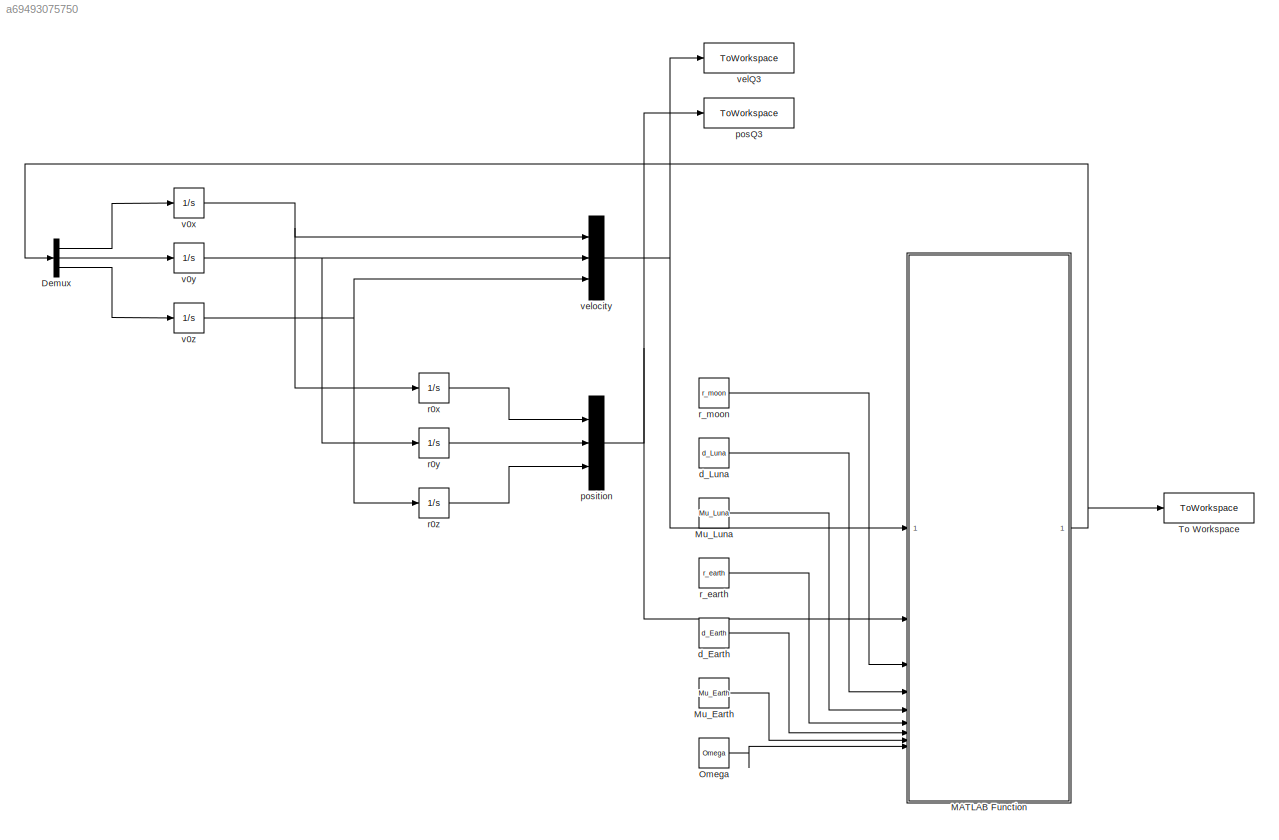
MODEL slx_a69493075750
KIND model
CONFIG AbsTol = auto
CONFIG EnableMultiTasking = off
CONFIG FixedStep = auto
CONFIG MaxStep = auto
CONFIG MinStep = auto
CONFIG RelTol = 1e-3
CONFIG SampleTimeConstraint = Unconstrained
CONFIG SolverName = VariableStepAuto
CONFIG StartTime = 0.0
CONFIG StopTime = 100
BLOCK [Demux] Demux
  Outputs = 3
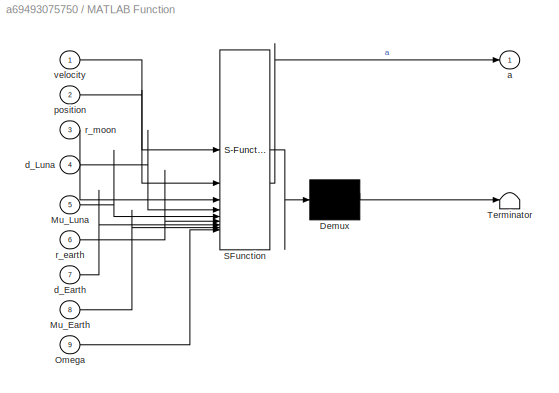
BLOCK [SubSystem] MATLAB Function
  ErrorFcn = Stateflow.Translate.translate
  LibrarySourceBlock = simulink/User-Defined\nFunctions/MATLAB Function
  PermitHierarchicalResolution = ExplicitOnly
  SFBlockType = MATLAB Function
  TreatAsAtomicUnit = on
BLOCK [Demux] MATLAB Function/ Demux 
  Outputs = 1
BLOCK [S-Function] MATLAB Function/ SFunction 
  EnableBusSupport = off
  FunctionName = sf_sfun
  PortCounts = [9 2]
  SFcnIsStateOwnerBlock = off
  SFunctionDeploymentMode = off
  Tag = Stateflow S-Function 2
BLOCK [Terminator] MATLAB Function/ Terminator 
BLOCK [Inport] MATLAB Function/Mu_Earth
  Port = 8
BLOCK [Inport] MATLAB Function/Mu_Luna
  Port = 5
BLOCK [Inport] MATLAB Function/Omega
  Port = 9
BLOCK [Outport] MATLAB Function/a
BLOCK [Inport] MATLAB Function/d_Earth
  Port = 7
BLOCK [Inport] MATLAB Function/d_Luna
  Port = 4
BLOCK [Inport] MATLAB Function/position
  Port = 2
BLOCK [Inport] MATLAB Function/r_earth
  Port = 6
BLOCK [Inport] MATLAB Function/r_moon
  Port = 3
BLOCK [Inport] MATLAB Function/velocity
BLOCK [Constant] Mu_Earth
  Value = Mu_Earth
BLOCK [Constant] Mu_Luna
  Value = Mu_Luna
BLOCK [Constant] Omega
  Value = Omega
BLOCK [ToWorkspace] To Workspace
  FixptAsFi = on
  MaxDataPoints = inf
  SampleTime = -1
  SaveFormat = Timeseries
  VariableName = aq3
BLOCK [Constant] d_Earth
  Value = d_Earth
BLOCK [Constant] d_Luna
  Value = d_Luna
BLOCK [ToWorkspace] posQ3
  FixptAsFi = on
  MaxDataPoints = inf
  SampleTime = -1
  SaveFormat = Timeseries
  VariableName = posQ3
BLOCK [Mux] position
  DisplayOption = bar
  Inputs = 3
BLOCK [Integrator] r0x
  InitialCondition = r0x
BLOCK [Integrator] r0y
  InitialCondition = r0y
BLOCK [Integrator] r0z
  InitialCondition = r0z
BLOCK [Constant] r_earth
  Value = r_earth
BLOCK [Constant] r_moon
  Value = r_moon
BLOCK [Integrator] v0x
  InitialCondition = v0x
BLOCK [Integrator] v0y
  InitialCondition = v0y
BLOCK [Integrator] v0z
  InitialCondition = v0z
BLOCK [ToWorkspace] velQ3
  FixptAsFi = on
  MaxDataPoints = inf
  SampleTime = -1
  SaveFormat = Timeseries
  VariableName = velQ3
BLOCK [Mux] velocity
  DisplayOption = bar
  Inputs = 3
LINE Demux:1 -> v0x:1
LINE Demux:2 -> v0y:1
LINE Demux:3 -> v0z:1
NET MATLAB Function:1 -> Demux:1, To Workspace:1
LINE Mu_Earth:1 -> MATLAB Function:8
LINE Mu_Luna:1 -> MATLAB Function:5
LINE Omega:1 -> MATLAB Function:9
LINE d_Earth:1 -> MATLAB Function:7
LINE d_Luna:1 -> MATLAB Function:4
NET position:1 -> MATLAB Function:2, posQ3:1
LINE r0x:1 -> position:1
LINE r0y:1 -> position:2
LINE r0z:1 -> position:3
LINE r_earth:1 -> MATLAB Function:6
LINE r_moon:1 -> MATLAB Function:3
NET v0x:1 -> r0x:1, velocity:1
NET v0y:1 -> r0y:1, velocity:2
NET v0z:1 -> r0z:1, velocity:3
NET velocity:1 -> MATLAB Function:1, velQ3:1
note: NET lines group one-source signal fan-out (src -> all destinations, sorted); 1:1 wires keep LINE
CHART MATLAB Function states=1 transitions=1
  STATE_LABEL 'eML_blk_kernel()'
  STATE_LABEL 'SCRIPT:\nfunction a = accel(velocity, position, r_moon, d_Luna, Mu_Luna, r_earth, d_Earth, Mu_Earth, Omega)\n\n    %% Define variables\n    \n    % position\n    x = position(1);\n    y = position(2);\n    z = position(3);\n    \n    % velocity\n    x_v = velocity(1);\n    y_v = velocity(2);\n\n\n     \n    %% Function\n    \n    ax = 2*Omega*y_v + (Omega^2)*x - (Mu_Earth / r_earth^3)*(x-d_Earth) - (Mu_Luna / r_moo...<+202ch>'
CHART  states=0 transitions=0
